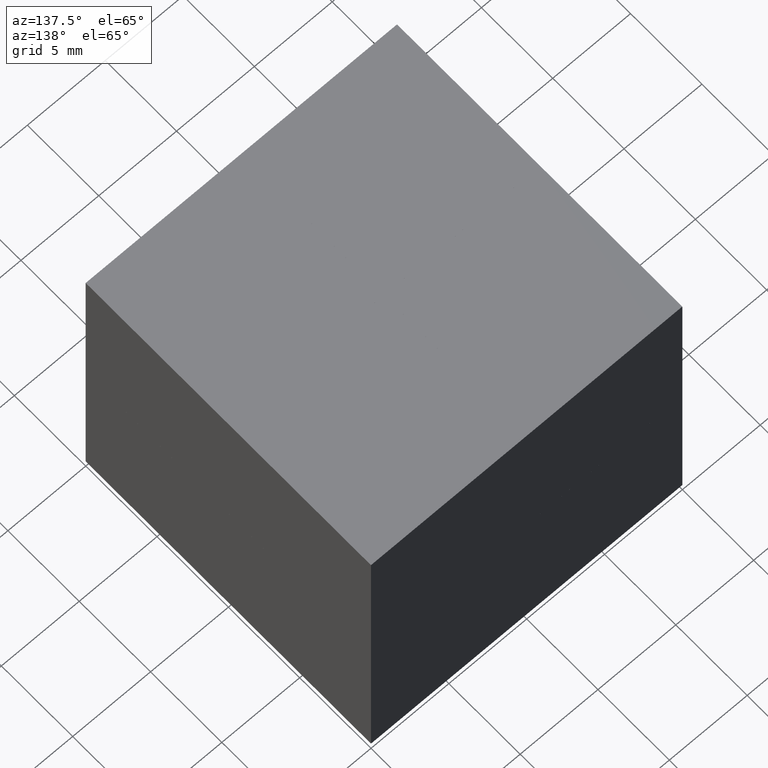
[diagram: clean part render]
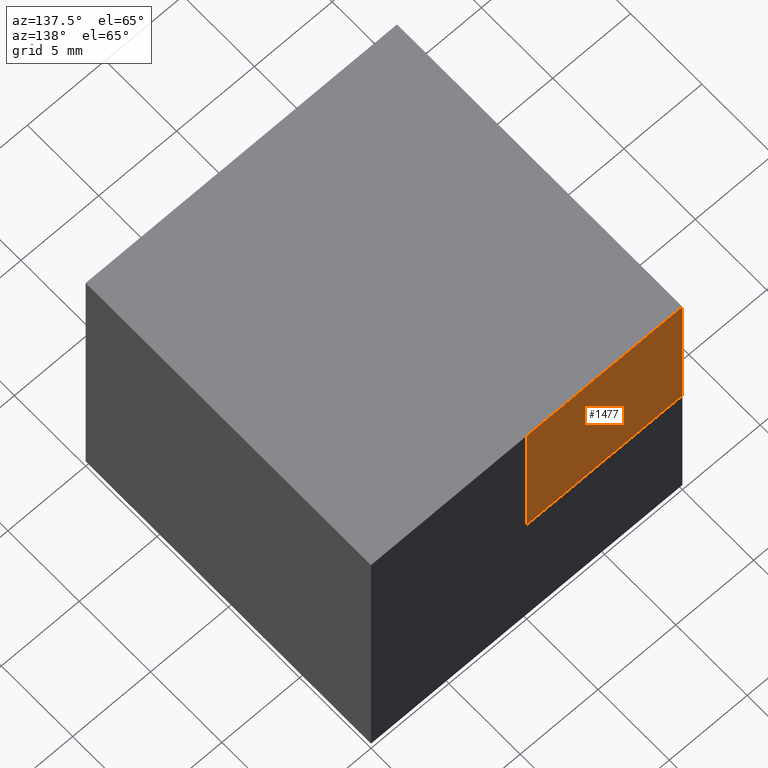
[diagram: same view with one face highlighted and labeled with its STEP entity id]
A machine part, auxiliary view. The second image highlights one B-rep face of the part: STEP entity #1477.
In plain terms, the highlighted planar face has unit normal (0, -1, 0).
Its self-contained STEP definition (entity closure, byte-faithful):
#50 = AXIS2_PLACEMENT_3D ( 'NONE', #983, #1158, #1857 ) ;
#52 = CARTESIAN_POINT ( 'NONE',  ( -10.00000000000000178, 10.00000000000000178, 9.999900000000000233 ) ) ;
#122 = DIRECTION ( 'NONE',  ( -1.225566709253717038E-16, 0.0000000000000000000, 1.000000000000000000 ) ) ;
#238 = CARTESIAN_POINT ( 'NONE',  ( -10.00000000000000178, 10.00000000000000178, 10.00000000000000000 ) ) ;
#245 = PLANE ( 'NONE',  #50 ) ;
#267 = CARTESIAN_POINT ( 'NONE',  ( -0.02000000000000308822, 10.00000000000000178, 0.01999999999999940020 ) ) ;
#422 = ORIENTED_EDGE ( 'NONE', *, *, #1424, .F. ) ;
#431 = ORIENTED_EDGE ( 'NONE', *, *, #883, .F. ) ;
#505 = VERTEX_POINT ( 'NONE', #1887 ) ;
#514 = EDGE_CURVE ( 'NONE', #1264, #1570, #1586, .T. ) ;
#551 = CARTESIAN_POINT ( 'NONE',  ( -0.02000000000000431294, 10.00000000000000178, 10.00000000000000000 ) ) ;
#606 = CARTESIAN_POINT ( 'NONE',  ( -0.02000000000000265454, 10.00000000000000178, 0.01999999999999969511 ) ) ;
#662 = DIRECTION ( 'NONE',  ( -1.000000000000000000, -0.0000000000000000000, -0.0000000000000000000 ) ) ;
#758 = ORIENTED_EDGE ( 'NONE', *, *, #937, .F. ) ;
#793 = CARTESIAN_POINT ( 'NONE',  ( -9.999916738503856095, 9.999958259960735063, 0.02000000000000302577 ) ) ;
#825 = DIRECTION ( 'NONE',  ( -0.0000000000000000000, -0.0000000000000000000, -1.000000000000000000 ) ) ;
#851 = VECTOR ( 'NONE', #122, 1000.000000000000000 ) ;
#874 = DIRECTION ( 'NONE',  ( 1.000000000000000000, 0.0000000000000000000, -1.225566709253717038E-16 ) ) ;
#883 = EDGE_CURVE ( 'NONE', #941, #505, #1536, .T. ) ;
#937 = EDGE_CURVE ( 'NONE', #505, #1264, #1558, .T. ) ;
#941 = VERTEX_POINT ( 'NONE', #1080 ) ;
#983 = CARTESIAN_POINT ( 'NONE',  ( -10.00000000000000178, 10.00000000000000178, 10.00000000000000000 ) ) ;
#1028 = ORIENTED_EDGE ( 'NONE', *, *, #514, .F. ) ;
#1035 = VECTOR ( 'NONE', #825, 1000.000000000000000 ) ;
#1080 = CARTESIAN_POINT ( 'NONE',  ( -0.02000000000000215147, 10.00000000000000178, 9.999900000000002009 ) ) ;
#1157 = VECTOR ( 'NONE', #874, 1000.000000000000000 ) ;
#1158 = DIRECTION ( 'NONE',  ( 0.0000000000000000000, -1.000000000000000000, 0.0000000000000000000 ) ) ;
#1264 = VERTEX_POINT ( 'NONE', #793 ) ;
#1271 = FACE_OUTER_BOUND ( 'NONE', #1808, .T. ) ;
#1424 = EDGE_CURVE ( 'NONE', #1570, #941, #1883, .T. ) ;
#1477 = ADVANCED_FACE ( 'NONE', ( #1271 ), #245, .F. ) ;
#1536 = LINE ( 'NONE', #52, #1862 ) ;
#1558 = LINE ( 'NONE', #238, #1035 ) ;
#1570 = VERTEX_POINT ( 'NONE', #606 ) ;
#1586 = LINE ( 'NONE', #267, #1157 ) ;
#1808 = EDGE_LOOP ( 'NONE', ( #431, #422, #1028, #758 ) ) ;
#1857 = DIRECTION ( 'NONE',  ( 0.0000000000000000000, -0.0000000000000000000, -1.000000000000000000 ) ) ;
#1862 = VECTOR ( 'NONE', #662, 1000.000000000000000 ) ;
#1883 = LINE ( 'NONE', #551, #851 ) ;
#1887 = CARTESIAN_POINT ( 'NONE',  ( -10.00000000000000178, 10.00000000000000178, 9.999900000000000233 ) ) ;